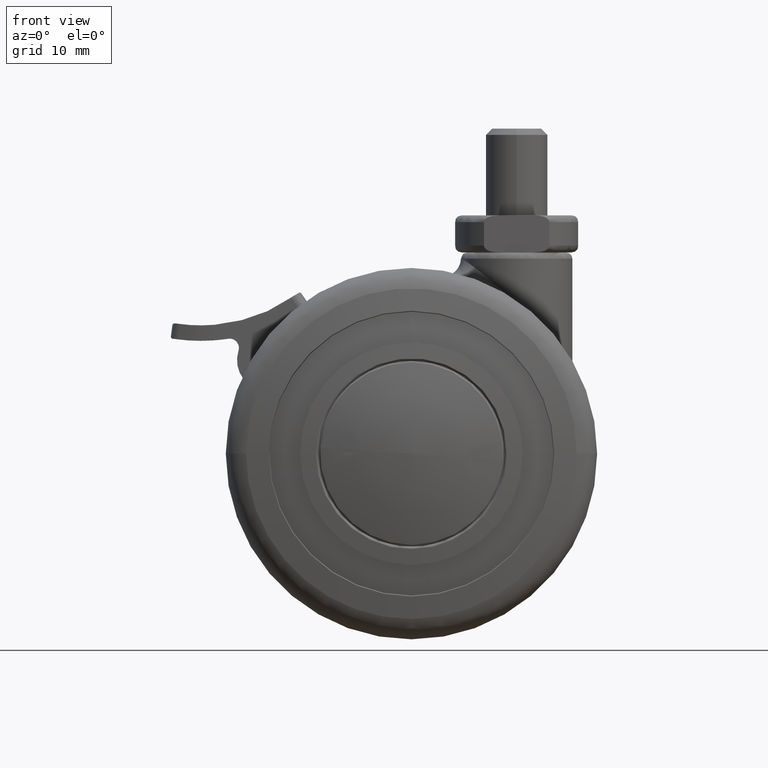
[diagram: clean part render]
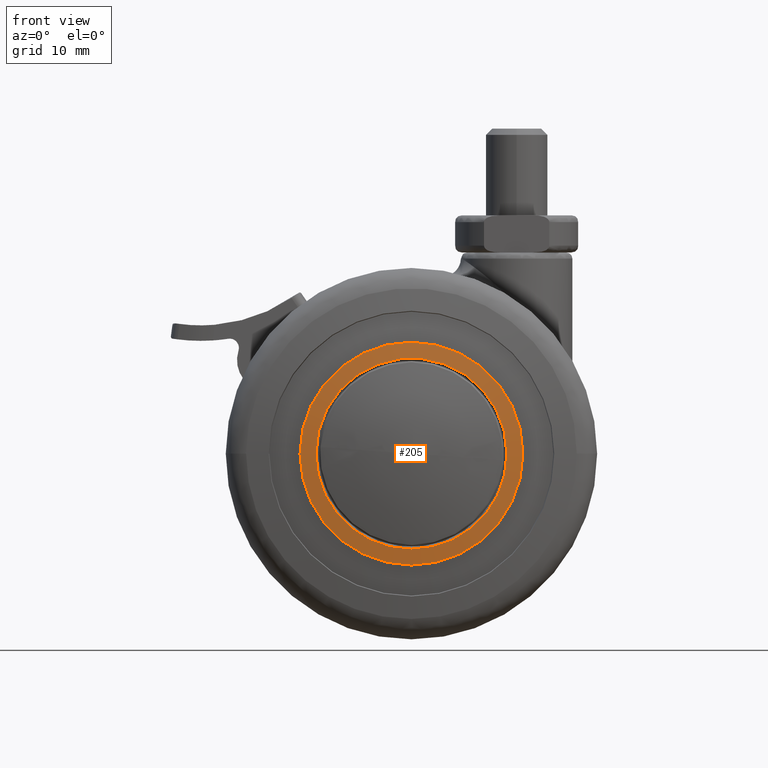
[diagram: same view with one face highlighted and labeled with its STEP entity id]
A machine part, front view. The second image highlights one B-rep face of the part: STEP entity #205.
In plain terms, the highlighted spherical surface has radius 150 mm.
Its self-contained STEP definition (entity closure, byte-faithful):
#205=ADVANCED_FACE('',(#523,#524),#522,.T.);
#522=SPHERICAL_SURFACE('',#3107,1.50000000000E+02);
#523=FACE_OUTER_BOUND('',#3108,.T.);
#524=FACE_BOUND('',#3109,.T.);
#3104=CARTESIAN_POINT('',(0.00000000000E+00,0.00000000000E+00,-1.35210000000E+02));
#3105=DIRECTION('',(-1.00000000000E+00,0.00000000000E+00,0.00000000000E+00));
#3106=DIRECTION('',(-0.00000000000E+00,-1.20000000000E-01,9.92773891679E-01));
#3107=AXIS2_PLACEMENT_3D('',#3104,#3105,#3106);
#3108=EDGE_LOOP('',(#5837,#5838));
#3109=EDGE_LOOP('',(#5839,#5840,#5841));
#5837=ORIENTED_EDGE('',*,*,#6978,.T.);
#5838=ORIENTED_EDGE('',*,*,#6979,.T.);
#5839=ORIENTED_EDGE('',*,*,#6980,.T.);
#5840=ORIENTED_EDGE('',*,*,#6981,.T.);
#5841=ORIENTED_EDGE('',*,*,#6982,.T.);
#6978=EDGE_CURVE('',#7800,#7801,#7802,.T.);
#6979=EDGE_CURVE('',#7801,#7800,#7808,.T.);
#6980=EDGE_CURVE('',#7814,#7815,#7816,.T.);
#6981=EDGE_CURVE('',#7815,#7822,#7823,.T.);
#6982=EDGE_CURVE('',#7822,#7814,#7829,.T.);
#7800=VERTEX_POINT('',#11533);
#7801=VERTEX_POINT('',#11534);
#7802=CIRCLE('',#11538,1.80000000000E+01);
#7808=CIRCLE('',#11542,1.80000000000E+01);
#7814=VERTEX_POINT('',#11543);
#7815=VERTEX_POINT('',#11544);
#7816=CIRCLE('',#11548,1.54308617234E+01);
#7822=VERTEX_POINT('',#11549);
#7823=CIRCLE('',#11553,1.54308617234E+01);
#7829=CIRCLE('',#11557,1.54308617234E+01);
#11533=CARTESIAN_POINT('',(1.80000000000E+01,-4.40865567535E-15,1.37060837519E+01));
#11534=CARTESIAN_POINT('',(-1.80000000000E+01,1.18423789293E-15,1.37060837519E+01));
#11535=CARTESIAN_POINT('',(0.00000000000E+00,0.00000000000E+00,1.37060837519E+01));
#11536=DIRECTION('',(0.00000000000E+00,0.00000000000E+00,1.00000000000E+00));
#11537=DIRECTION('',(1.00000000000E+00,-1.22464679915E-16,-0.00000000000E+00));
#11538=AXIS2_PLACEMENT_3D('',#11535,#11536,#11537);
#11539=CARTESIAN_POINT('',(0.00000000000E+00,0.00000000000E+00,1.37060837519E+01));
#11540=DIRECTION('',(0.00000000000E+00,0.00000000000E+00,1.00000000000E+00));
#11541=DIRECTION('',(1.00000000000E+00,-1.22464679915E-16,-0.00000000000E+00));
#11542=AXIS2_PLACEMENT_3D('',#11539,#11540,#11541);
#11543=CARTESIAN_POINT('',(1.88967313115E-15,-1.54308617234E+01,1.39941839443E+01));
#11544=CARTESIAN_POINT('',(-1.54308616403E+01,1.60142647471E-03,1.39941839443E+01));
#11545=CARTESIAN_POINT('',(0.00000000000E+00,0.00000000000E+00,1.39941839443E+01));
#11546=DIRECTION('',(0.00000000000E+00,0.00000000000E+00,-1.00000000000E+00));
#11547=DIRECTION('',(-0.00000000000E+00,-1.00000000000E+00,-0.00000000000E+00));
#11548=AXIS2_PLACEMENT_3D('',#11545,#11546,#11547);
#11549=CARTESIAN_POINT('',(1.54308617234E+01,-5.40735557049E-10,1.39941839443E+01));
#11550=CARTESIAN_POINT('',(0.00000000000E+00,0.00000000000E+00,1.39941839443E+01));
#11551=DIRECTION('',(0.00000000000E+00,0.00000000000E+00,-1.00000000000E+00));
#11552=DIRECTION('',(-0.00000000000E+00,-1.00000000000E+00,-0.00000000000E+00));
#11553=AXIS2_PLACEMENT_3D('',#11550,#11551,#11552);
#11554=CARTESIAN_POINT('',(0.00000000000E+00,0.00000000000E+00,1.39941839443E+01));
#11555=DIRECTION('',(0.00000000000E+00,0.00000000000E+00,-1.00000000000E+00));
#11556=DIRECTION('',(-0.00000000000E+00,-1.00000000000E+00,-0.00000000000E+00));
#11557=AXIS2_PLACEMENT_3D('',#11554,#11555,#11556);